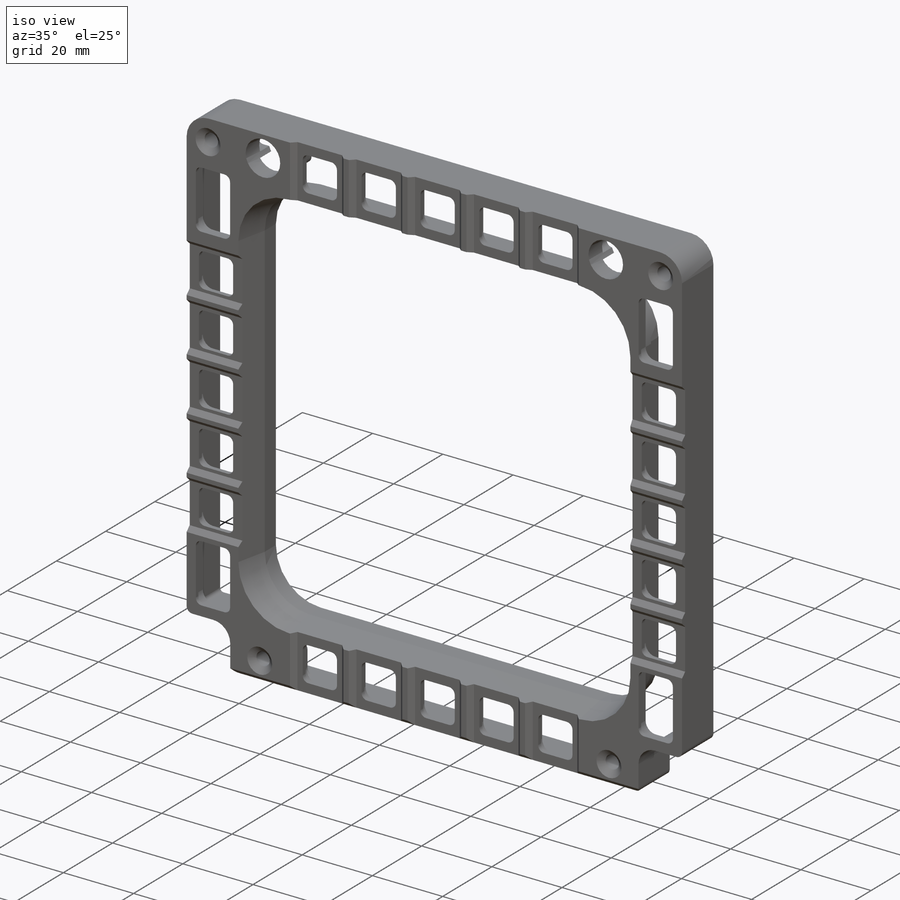
[diagram: iso view]
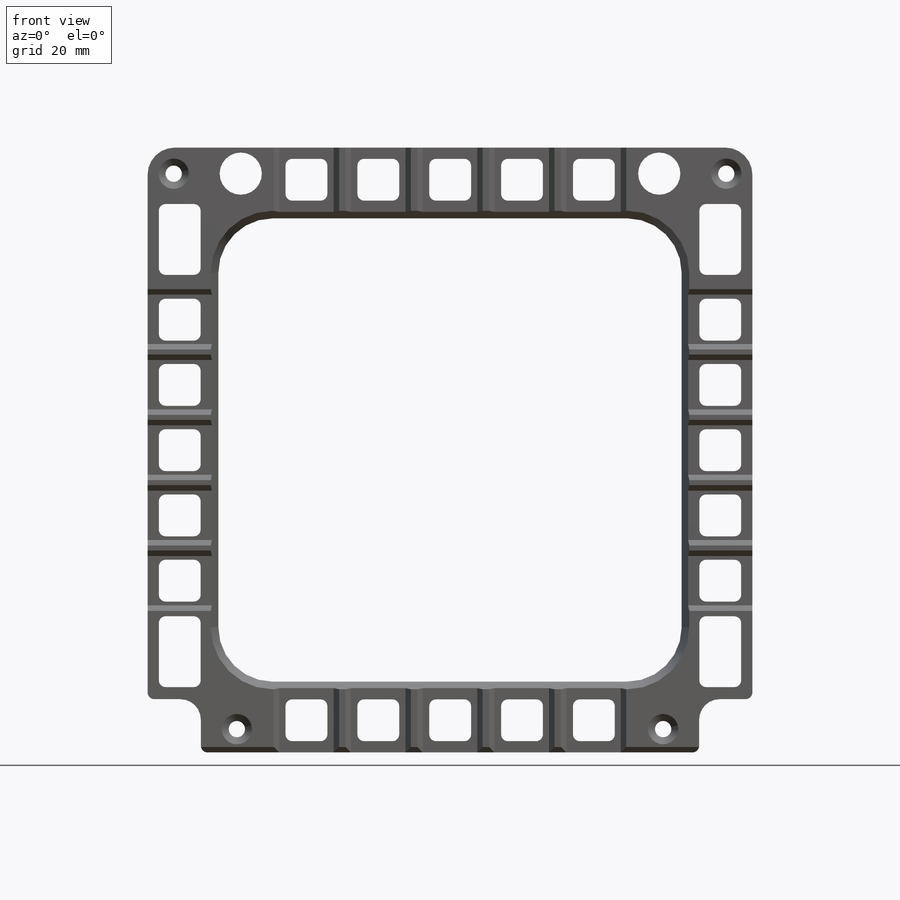
[diagram: front view]
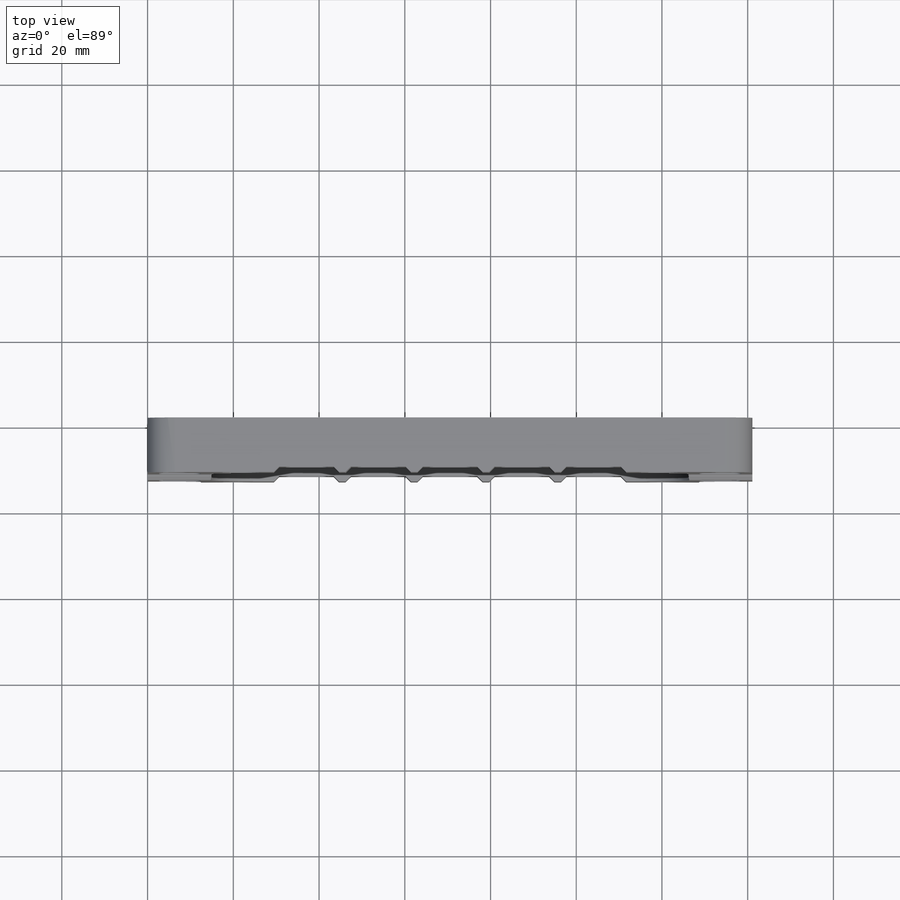
[diagram: top view]
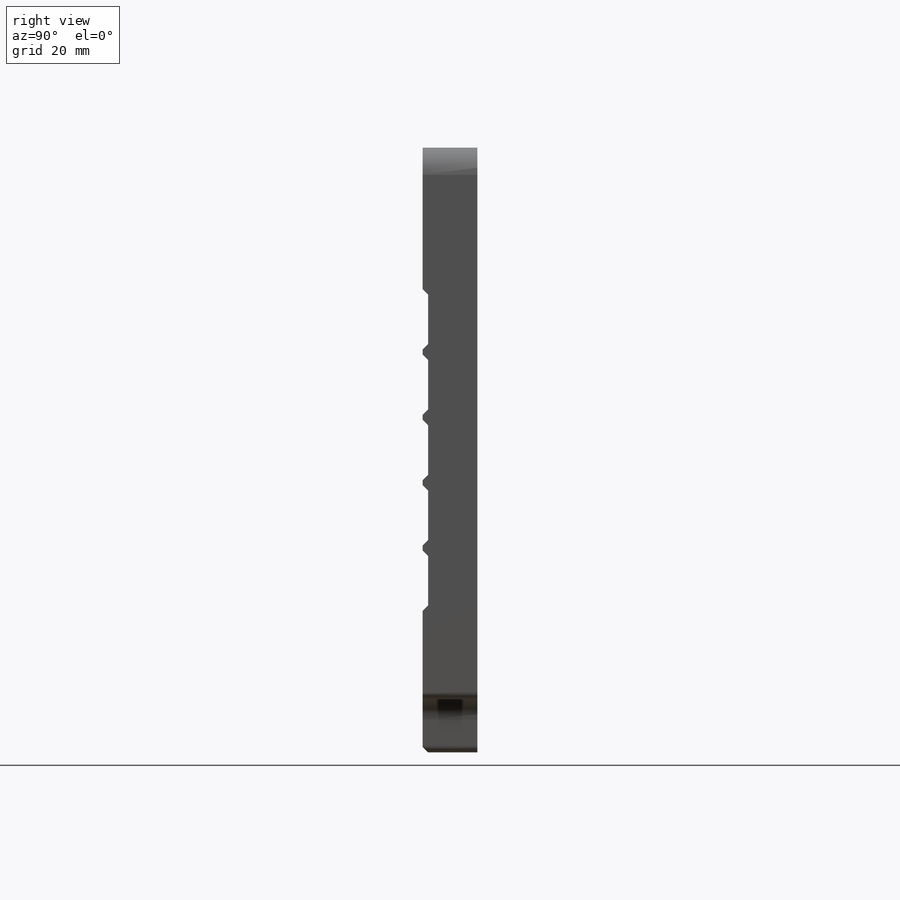
[diagram: right view]
SOLIDWORKS PART (.sldprt)
format: sldprt  version: not decoded by parser v0  size: 1,766,400 bytes
history: native  units: mm
features: sketch x18, cut_extrude x11, fillet x9, extrude x3, chamfer x2, hole x2, material x1 (+16 scaffold rows collapsed)
feature tree (62):
  scaffold x16  (default folders/planes/origin — collapsed)
  material  "6061-T6 (SS)"
  sketch  "Sketch1"  dims[D1=141.097mm D2=141.097mm D3=108.077mm D4=108.077mm D5=128.6764mm D6=128.6764mm D7=128.6764mm]
  extrude  "Main Body"  Depth=12.7508mm
  sketch  "Sketch2"  dims[D1=128.6764mm D2=128.6764mm D3=128.6764mm]
  cut_extrude  "Corner Cutout"  [1 undecoded]
  fillet  "Innder Screen Corner"  Radius=12.7mm
  chamfer  "Screen Chamfer"  Distance=1.778mm Angle=77.75deg
  chamfer  "Chamfer2"  Distance=1.27mm Angle=45deg
  sketch  "Sketch3"  dims[D4=~16.74495mm D1=1.27mm D2=6.35mm D3=6.35mm]
  cut_extrude  "Horizontal Button Recess"  [1 undecoded]
  sketch  "Sketch7"  dims[c1.D2=11.5316mm c1.D3=12.5984mm c1.D1=75.0316mm c2.D3=15.24mm c2.D1=20.8534mm]
  cut_extrude  "Vertical Button Recess"  [1 undecoded]
  fillet  "Fillet2"  Radius=4.7625mm
  fillet  "Fillet3"  Radius=6.35mm
  fillet  "Fillet4"  Radius=1.5875mm
  sketch  "Sketch12"  dims[D1=9.7536mm D2=9.7536mm D3=9.7536mm D4=9.7536mm D5=9.7536mm]
  cut_extrude  "Buttons Cutout"  [1 undecoded]
  sketch  "Sketch13"  dims[D1=1.27mm D2=3.3401mm D3=16.5227mm D4=16.5227mm]
  cut_extrude  "Rocker Button Cutout"  [1 undecoded]
  fillet  "Fillet5"  Radius=1.5875mm
  fillet  "Fillet6"  Radius=1.5875mm
  fillet  "Fillet7"  Radius=1.5875mm
  fillet  "Fillet8"  Radius=1.5875mm
  sketch  "Sketch15"  dims[D1=0.635mm D2=0.8636mm]
  cut_extrude  "Extrude11"  Depth=8.128mm
  sketch  "Sketch21"  dims[c1.D1=8.8646mm c1.D2=29.1338mm c2.D1=8.8646mm c2.D2=29.1338mm c2.D3=8.382mm c2.D4=15.5829mm c2.D5=15.5829mm]
  extrude  "Extrude15"  Depth=4.572mm
  sketch  "Sketch14"  dims[D1=9.8425mm D2=~6.07695mm D3=~21.73605mm]
  cut_extrude  "Indicator Light Cutout"  [1 undecoded]
  hole  "CSK for #6 Flat Head Machine Screw (100)1"  Diameter=3.7973mm Depth=12.7508mm
  sketch  "3DSketch1"  dims[D1=6.096mm D2=6.096mm D3=6.096mm D4=6.096mm D5=5.588mm D6=5.588mm D7=8.4074mm D8=8.4074mm]
  sketch  "Sketch20"  dims[hole-wizard template sketch: 55 standard entries collapsed; hole parameters kept: c17.Thru Hole Depth=12.7508mm c17.Near C'Sink Dia.=7.0866mm c17.D4=~3.666174mm c17.Near C'Sink Angle=100.0deg]
  sketch  "Sketch22"  dims[D1=5.6642mm]
  cut_extrude  "Extrude16"  [1 undecoded]
  sketch  "Sketch16"  dims[D1=0.7366mm]
  extrude  "Extrude12"  Depth=4.0894mm
  sketch  "Sketch17"  dims[D1=~1.23825mm D2=~1.23825mm D3=~1.23825mm D4=~1.23825mm D5=~1.23825mm D6=~1.23825mm D7=~1.23825mm D8=~1.23825mm D9=~1.23825mm D10=~1.23825mm D11=~1.23825mm D12=~1.23825mm D13=~1.23825mm D14=~1.23825mm D15=~1.23825mm D16=~1.23825mm D17=~1.23825mm D18=~1.23825mm D19=~1.23825mm D20=~1.23825mm D21=~1.23825mm D22=~1.23825mm D23=~1.23825mm D24=~1.23825mm]
  cut_extrude  "Inside Button Recess"  Depth=2.159mm
  sketch  "Sketch19"  dims[D1=~1.23825mm D2=~1.23825mm D3=~1.23825mm D4=~1.23825mm]
  cut_extrude  "Inside Rocker Recess"  Depth=3.5814mm
  fillet  "Fillet9"  Radius=1.5875mm
  sketch  "Sketch23"  dims[D3=10.9601mm D4=6.35mm D5=~105.292627mm D1=1.5875mm D2=1.5875mm]
  cut_extrude  "Extrude17"  Depth=3.6703mm
  hole  "3/32 (0.09375) Diameter Hole1"  Diameter=2.38125mm Depth=6.35mm
  sketch  "3DSketch2"  dims[c1.D5=3.7973mm c1.D1=~5.494093mm c2.D5=6.096mm c2.D2=~5.342202mm c2.D1=6.096mm c2.D3=~2.082994mm c2.D4=2.0828mm c3.D1=113.0808mm]
  sketch  "Sketch24"  dims[hole-wizard template sketch: 47 standard entries collapsed; hole parameters kept: c15.Hole Depth=6.35mm c15.D3=~14.816244mm c15.Drill Angle=118.0deg]
decode coverage: 38 of 45 modeling features carry decoded parameters
note: ~ marks probable driven/reference dimensions
note: 7 parameter values undecoded
summary: no parameter record found for 7 features
note: suppression state not decoded; provenance and decode notes live in map.json
